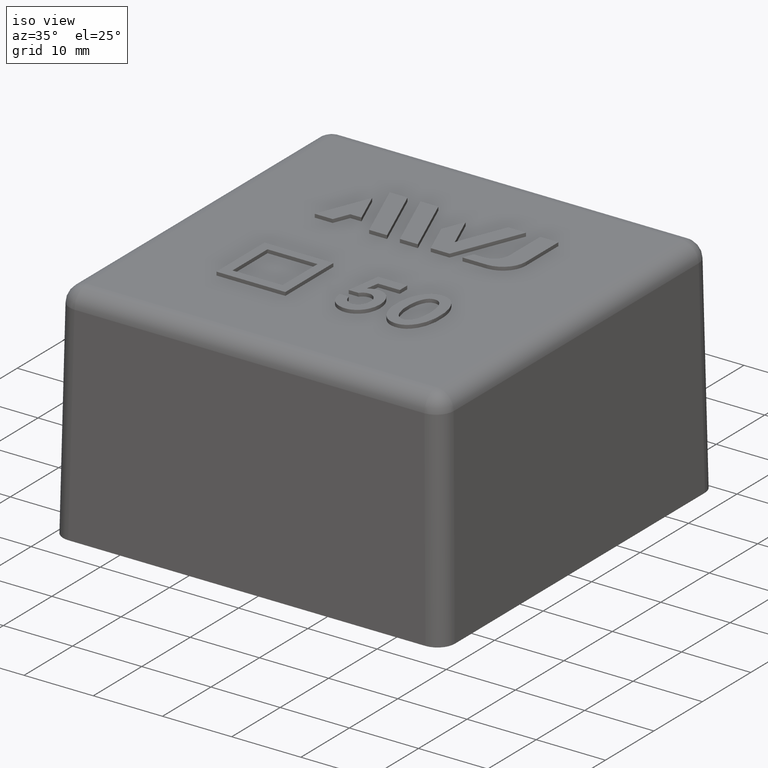
[diagram: clean part render]
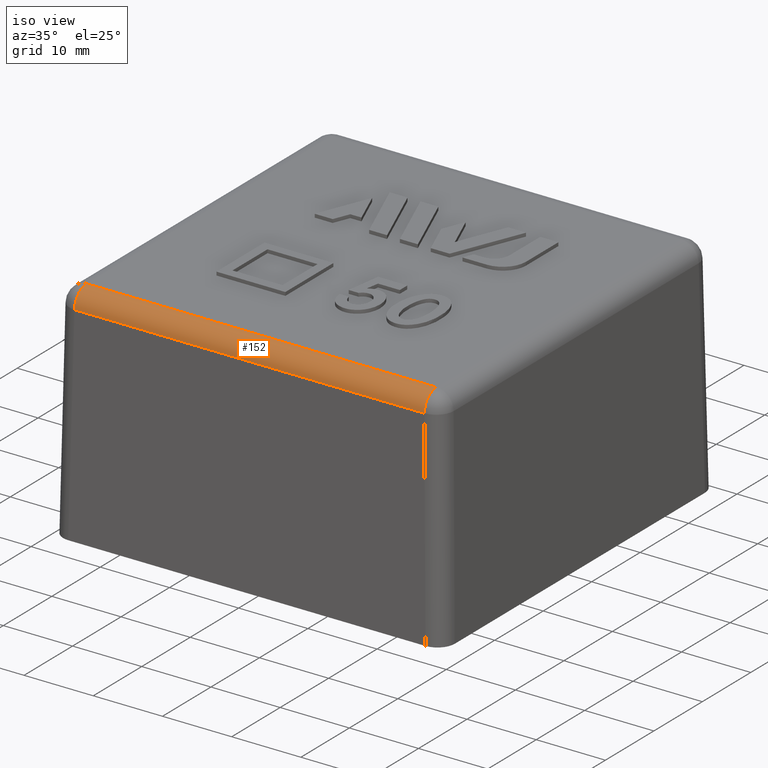
[diagram: same view with one face highlighted and labeled with its STEP entity id]
A machine part, iso view. The second image highlights one B-rep face of the part: STEP entity #152.
In plain terms, the highlighted cylindrical surface (edge-blend (fillet) strip) has radius 2.5 mm, axis along (-1, 0, 0).
Its self-contained STEP definition (entity closure, byte-faithful):
#152 = ADVANCED_FACE( '', ( #324 ), #325, .T. );
#324 = FACE_OUTER_BOUND( '', #504, .T. );
#325 = CYLINDRICAL_SURFACE( '', #505, 2.50000000000000 );
#504 = EDGE_LOOP( '', ( #1161, #1162, #1163, #1164 ) );
#505 = AXIS2_PLACEMENT_3D( '', #1165, #1166, #1167 );
#1161 = ORIENTED_EDGE( '', *, *, #1375, .T. );
#1162 = ORIENTED_EDGE( '', *, *, #1376, .F. );
#1163 = ORIENTED_EDGE( '', *, *, #1377, .F. );
#1164 = ORIENTED_EDGE( '', *, *, #1198, .F. );
#1165 = CARTESIAN_POINT( '', ( -28.3000000000000, -25.2759672320437, 30.0000000000000 ) );
#1166 = DIRECTION( '', ( -1.00000000000000, 0.000000000000000, 0.000000000000000 ) );
#1167 = DIRECTION( '', ( 0.000000000000000, 0.000000000000000, -1.00000000000000 ) );
#1198 = EDGE_CURVE( '', #1398, #1399, #1400, .F. );
#1375 = EDGE_CURVE( '', #1398, #1685, #1689, .T. );
#1376 = EDGE_CURVE( '', #1682, #1685, #1690, .F. );
#1377 = EDGE_CURVE( '', #1399, #1682, #1691, .T. );
#1398 = VERTEX_POINT( '', #1752 );
#1399 = VERTEX_POINT( '', #1753 );
#1400 = LINE( '', #1754, #1755 );
#1682 = VERTEX_POINT( '', #2299 );
#1685 = VERTEX_POINT( '', #2303 );
#1689 = CIRCLE( '', #2308, 2.50000000000000 );
#1690 = LINE( '', #2309, #2310 );
#1691 = CIRCLE( '', #2311, 2.50000000000000 );
#1752 = CARTESIAN_POINT( '', ( -25.2759672320437, -25.2759672320437, 32.5000000000000 ) );
#1753 = CARTESIAN_POINT( '', ( 25.2759672320437, -25.2759672320437, 32.5000000000000 ) );
#1754 = CARTESIAN_POINT( '', ( 25.2330911519420, -25.2759672320437, 32.5000000000000 ) );
#1755 = VECTOR( '', #2312, 1000.00000000000 );
#2299 = CARTESIAN_POINT( '', ( 25.2759672320437, -27.7755864699347, 30.0436310160932 ) );
#2303 = CARTESIAN_POINT( '', ( -25.2759672320437, -27.7755864699347, 30.0436310160932 ) );
#2308 = AXIS2_PLACEMENT_3D( '', #2495, #2496, #2497 );
#2309 = CARTESIAN_POINT( '', ( -25.2330911519419, -27.7755864699347, 30.0436310160932 ) );
#2310 = VECTOR( '', #2498, 1000.00000000000 );
#2311 = AXIS2_PLACEMENT_3D( '', #2499, #2500, #2501 );
#2312 = DIRECTION( '', ( -1.00000000000000, 0.000000000000000, 0.000000000000000 ) );
#2495 = CARTESIAN_POINT( '', ( -25.2759672320437, -25.2759672320437, 30.0000000000000 ) );
#2496 = DIRECTION( '', ( 1.00000000000000, 0.000000000000000, 0.000000000000000 ) );
#2497 = DIRECTION( '', ( 0.000000000000000, 0.000000000000000, -1.00000000000000 ) );
#2498 = DIRECTION( '', ( 1.00000000000000, 0.000000000000000, 0.000000000000000 ) );
#2499 = CARTESIAN_POINT( '', ( 25.2759672320437, -25.2759672320437, 30.0000000000000 ) );
#2500 = DIRECTION( '', ( 1.00000000000000, -2.77598035681700E-015, 0.000000000000000 ) );
#2501 = DIRECTION( '', ( 2.77598035681700E-015, 1.00000000000000, 0.000000000000000 ) );